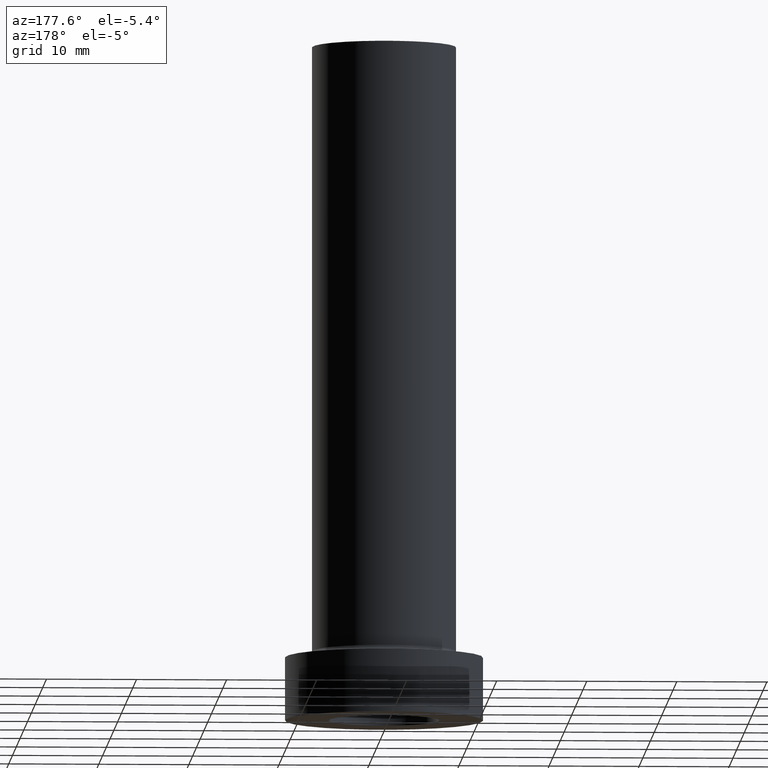
[diagram: clean part render]
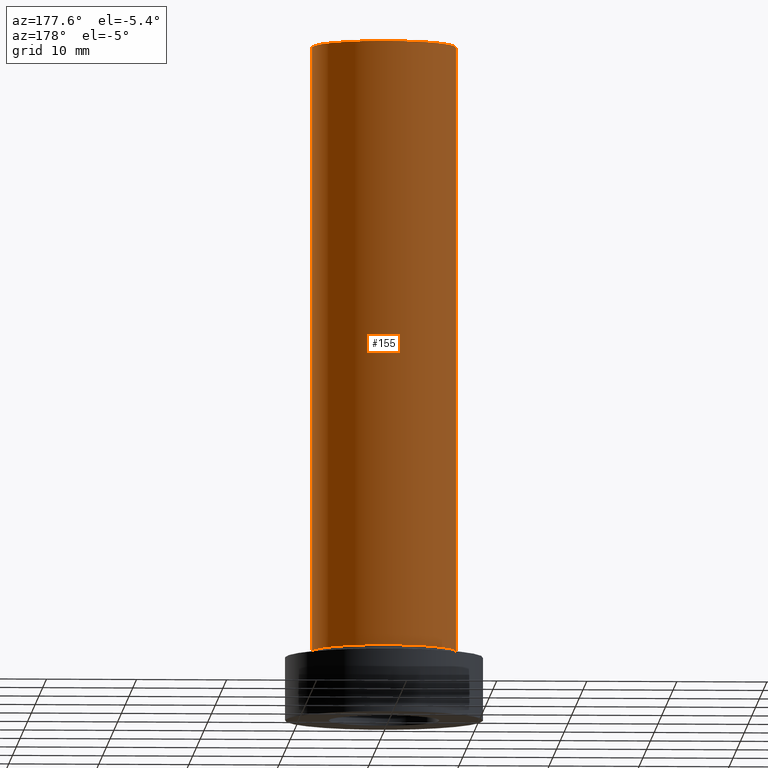
[diagram: same view with one face highlighted and labeled with its STEP entity id]
A machine part, auxiliary view. The second image highlights one B-rep face of the part: STEP entity #155.
In plain terms, the highlighted cylindrical surface (partial cylindrical patch) has radius 8 mm, axis along (-0, -0, -1).
Its self-contained STEP definition (entity closure, byte-faithful):
#2 = DIRECTION ( 'NONE',  ( 0.000000000000000000, 0.000000000000000000, 1.000000000000000000 ) ) ;
#23 = ORIENTED_EDGE ( 'NONE', *, *, #169, .T. ) ;
#34 = CARTESIAN_POINT ( 'NONE',  ( 0.000000000000000000, 0.000000000000000000, 7.699999999999998401 ) ) ;
#35 = DIRECTION ( 'NONE',  ( 1.000000000000000000, 0.000000000000000000, 0.000000000000000000 ) ) ;
#41 = DIRECTION ( 'NONE',  ( 1.000000000000000000, 0.000000000000000000, 0.000000000000000000 ) ) ;
#72 = DIRECTION ( 'NONE',  ( 0.000000000000000000, 0.000000000000000000, 1.000000000000000000 ) ) ;
#121 = EDGE_CURVE ( 'NONE', #265, #355, #389, .T. ) ;
#130 = CARTESIAN_POINT ( 'NONE',  ( 8.000000000000000000, 9.797174393178825657E-16, 75.00000000000001421 ) ) ;
#134 = ORIENTED_EDGE ( 'NONE', *, *, #121, .T. ) ;
#142 = AXIS2_PLACEMENT_3D ( 'NONE', #426, #72, #41 ) ;
#147 = CIRCLE ( 'NONE', #142, 8.000000000000000000 ) ;
#155 = ADVANCED_FACE ( 'NONE', ( #303 ), #369, .T. ) ;
#169 = EDGE_CURVE ( 'NONE', #232, #265, #331, .T. ) ;
#179 = DIRECTION ( 'NONE',  ( -0.000000000000000000, -0.000000000000000000, -1.000000000000000000 ) ) ;
#232 = VERTEX_POINT ( 'NONE', #130 ) ;
#242 = AXIS2_PLACEMENT_3D ( 'NONE', #262, #294, #374 ) ;
#261 = ORIENTED_EDGE ( 'NONE', *, *, #379, .F. ) ;
#262 = CARTESIAN_POINT ( 'NONE',  ( 0.000000000000000000, 0.000000000000000000, 75.00000000000001421 ) ) ;
#264 = CARTESIAN_POINT ( 'NONE',  ( 8.000000000000000000, 9.797174393178825657E-16, 75.00000000000001421 ) ) ;
#265 = VERTEX_POINT ( 'NONE', #412 ) ;
#269 = VECTOR ( 'NONE', #179, 1000.000000000000000 ) ;
#274 = CARTESIAN_POINT ( 'NONE',  ( -8.000000000000000000, 0.000000000000000000, 75.00000000000001421 ) ) ;
#289 = EDGE_LOOP ( 'NONE', ( #261, #23, #134, #342 ) ) ;
#294 = DIRECTION ( 'NONE',  ( -0.000000000000000000, -0.000000000000000000, -1.000000000000000000 ) ) ;
#303 = FACE_OUTER_BOUND ( 'NONE', #289, .T. ) ;
#331 = LINE ( 'NONE', #264, #334 ) ;
#334 = VECTOR ( 'NONE', #410, 1000.000000000000000 ) ;
#342 = ORIENTED_EDGE ( 'NONE', *, *, #430, .F. ) ;
#353 = CARTESIAN_POINT ( 'NONE',  ( -8.000000000000000000, 0.000000000000000000, 7.699999999999998401 ) ) ;
#355 = VERTEX_POINT ( 'NONE', #353 ) ;
#369 = CYLINDRICAL_SURFACE ( 'NONE', #242, 8.000000000000000000 ) ;
#374 = DIRECTION ( 'NONE',  ( -1.000000000000000000, 0.000000000000000000, 0.000000000000000000 ) ) ;
#379 = EDGE_CURVE ( 'NONE', #232, #433, #147, .T. ) ;
#389 = CIRCLE ( 'NONE', #455, 8.000000000000000000 ) ;
#410 = DIRECTION ( 'NONE',  ( -0.000000000000000000, -0.000000000000000000, -1.000000000000000000 ) ) ;
#412 = CARTESIAN_POINT ( 'NONE',  ( 8.000000000000000000, 9.797174393178825657E-16, 7.699999999999998401 ) ) ;
#419 = CARTESIAN_POINT ( 'NONE',  ( -8.000000000000000000, 0.000000000000000000, 75.00000000000001421 ) ) ;
#426 = CARTESIAN_POINT ( 'NONE',  ( 0.000000000000000000, 0.000000000000000000, 75.00000000000001421 ) ) ;
#430 = EDGE_CURVE ( 'NONE', #433, #355, #459, .T. ) ;
#433 = VERTEX_POINT ( 'NONE', #419 ) ;
#455 = AXIS2_PLACEMENT_3D ( 'NONE', #34, #2, #35 ) ;
#459 = LINE ( 'NONE', #274, #269 ) ;